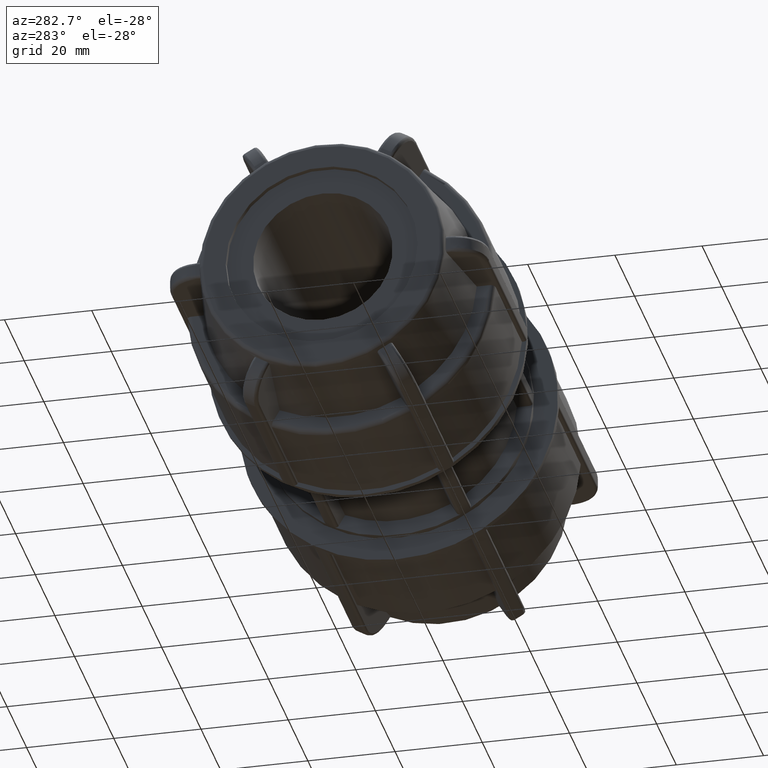
[diagram: clean part render]
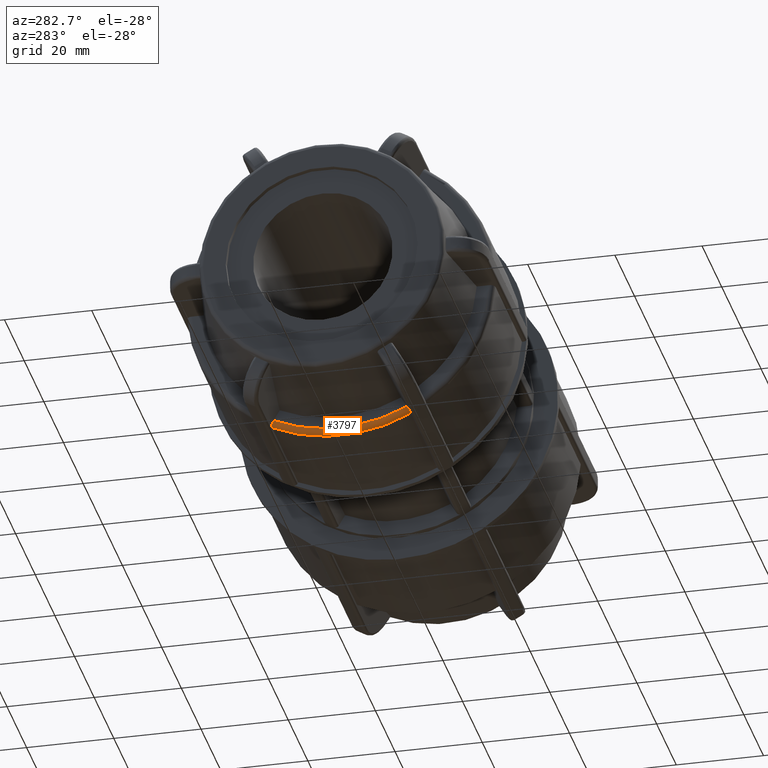
[diagram: same view with one face highlighted and labeled with its STEP entity id]
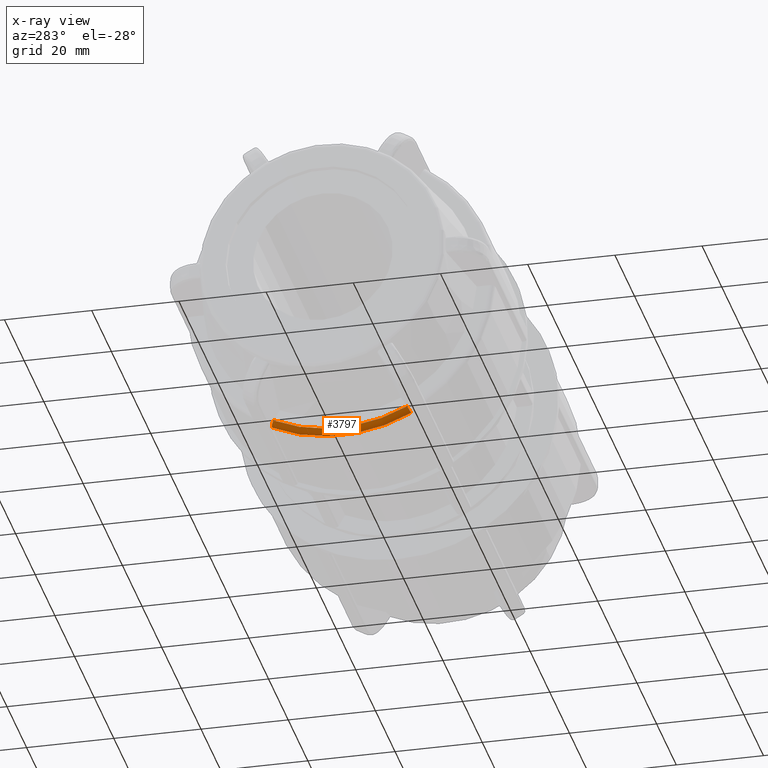
[diagram: x-ray of the same camera — body ghosted, the highlighted face saturated]
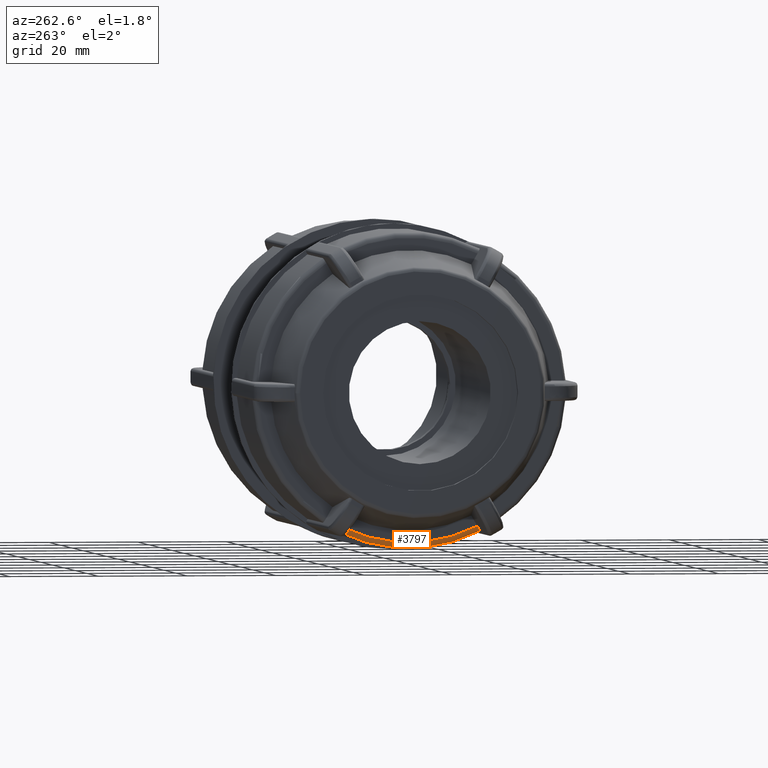
[diagram: same view with one face highlighted and labeled with its STEP entity id]
A machine part, auxiliary view. The second image highlights one B-rep face of the part: STEP entity #3797.
The next image is the same camera in x-ray: the body ghosted, the highlighted face saturated — about 0% of this face is hidden behind the body in this view.
A second angle (auxiliary view) of the same face is appended — the face is thin or edge-on in the first view.
In plain terms, the highlighted toroidal blend (fillet) surface has major radius 34.135 mm and minor (blend) radius 1.27 mm.
Its self-contained STEP definition (entity closure, byte-faithful):
#27=TOROIDAL_SURFACE('',#4144,34.135,1.27);
#70=B_SPLINE_CURVE_WITH_KNOTS('',3,(#5790,#5791,#5792,#5793,#5794,#5795,
#5796,#5797,#5798,#5799),.UNSPECIFIED.,.F.,.F.,(4,2,2,2,4),(-0.188239151094502,
-0.141113232694733,-0.0940304570825009,-0.0469960190171774,0.),
 .UNSPECIFIED.);
#104=B_SPLINE_CURVE_WITH_KNOTS('',3,(#6619,#6620,#6621,#6622,#6623,#6624,
#6625,#6626,#6627,#6628),.UNSPECIFIED.,.F.,.F.,(4,2,2,2,4),(0.,0.046996019017177,
0.0940304570825008,0.141113232694732,0.188239151094503),.UNSPECIFIED.);
#411=FACE_OUTER_BOUND('',#653,.T.);
#653=EDGE_LOOP('',(#2960,#2961,#2962,#2963));
#1365=CIRCLE('',#4132,34.135);
#1372=CIRCLE('',#4145,35.405);
#1570=VERTEX_POINT('',#5787);
#1571=VERTEX_POINT('',#5789);
#1675=VERTEX_POINT('',#6616);
#1676=VERTEX_POINT('',#6618);
#1986=EDGE_CURVE('',#1571,#1570,#70,.T.);
#2136=EDGE_CURVE('',#1676,#1675,#104,.T.);
#2161=EDGE_CURVE('',#1675,#1571,#1365,.T.);
#2170=EDGE_CURVE('',#1570,#1676,#1372,.T.);
#2960=ORIENTED_EDGE('',*,*,#1986,.T.);
#2961=ORIENTED_EDGE('',*,*,#2170,.T.);
#2962=ORIENTED_EDGE('',*,*,#2136,.T.);
#2963=ORIENTED_EDGE('',*,*,#2161,.T.);
#3797=ADVANCED_FACE('',(#411),#27,.T.);
#4132=AXIS2_PLACEMENT_3D('',#6696,#4917,#4918);
#4144=AXIS2_PLACEMENT_3D('',#6730,#4941,#4942);
#4145=AXIS2_PLACEMENT_3D('',#6731,#4943,#4944);
#4917=DIRECTION('center_axis',(1.,3.06161699786838E-16,0.));
#4918=DIRECTION('ref_axis',(3.06161699786838E-16,-1.,1.83697019872103E-16));
#4941=DIRECTION('center_axis',(1.,3.06161699786838E-16,0.));
#4942=DIRECTION('ref_axis',(0.,0.,-1.));
#4943=DIRECTION('center_axis',(-1.,-3.06161699786838E-16,0.));
#4944=DIRECTION('ref_axis',(3.05738581841414E-16,-1.,1.83697019872103E-16));
#5787=CARTESIAN_POINT('',(-43.18,15.9421820258527,-31.6126692522884));
#5789=CARTESIAN_POINT('',(-44.45,15.3061285625985,-30.5109923376019));
#5790=CARTESIAN_POINT('Ctrl Pts',(-44.45,15.3061285625985,-30.5109923376019));
#5791=CARTESIAN_POINT('Ctrl Pts',(-44.45,15.3846717599315,-30.6470331459715));
#5792=CARTESIAN_POINT('Ctrl Pts',(-44.4132703253075,15.4771171031854,-30.8071531774104));
#5793=CARTESIAN_POINT('Ctrl Pts',(-44.2931955099687,15.6222000441419,-31.0584442024585));
#5794=CARTESIAN_POINT('Ctrl Pts',(-44.1886539862115,15.7005257646304,-31.1941083298841));
#5795=CARTESIAN_POINT('Ctrl Pts',(-43.9669264528178,15.8114983712926,-31.3863185228714));
#5796=CARTESIAN_POINT('Ctrl Pts',(-43.8105538748911,15.8638037981107,-31.4769141796319));
#5797=CARTESIAN_POINT('Ctrl Pts',(-43.5210172064283,15.9238244761339,-31.5808730434729));
#5798=CARTESIAN_POINT('Ctrl Pts',(-43.3366533967239,15.9421820258527,-31.6126692522884));
#5799=CARTESIAN_POINT('Ctrl Pts',(-43.18,15.9421820258527,-31.6126692522884));
#6616=CARTESIAN_POINT('',(-44.45,-15.3061285625986,-30.5109923376019));
#6618=CARTESIAN_POINT('',(-43.18,-15.9421820258528,-31.6126692522883));
#6619=CARTESIAN_POINT('Ctrl Pts',(-43.18,-15.9421820258528,-31.6126692522883));
#6620=CARTESIAN_POINT('Ctrl Pts',(-43.3366533967239,-15.9421820258528,-31.6126692522883));
#6621=CARTESIAN_POINT('Ctrl Pts',(-43.5210172064283,-15.923824476134,-31.5808730434729));
#6622=CARTESIAN_POINT('Ctrl Pts',(-43.8105538748911,-15.8638037981108,-31.4769141796319));
#6623=CARTESIAN_POINT('Ctrl Pts',(-43.9669264528178,-15.8114983712927,-31.3863185228714));
#6624=CARTESIAN_POINT('Ctrl Pts',(-44.1886539862115,-15.7005257646304,-31.194108329884));
#6625=CARTESIAN_POINT('Ctrl Pts',(-44.2931955099686,-15.6222000441419,-31.0584442024585));
#6626=CARTESIAN_POINT('Ctrl Pts',(-44.4132703253075,-15.4771171031855,-30.8071531774104));
#6627=CARTESIAN_POINT('Ctrl Pts',(-44.45,-15.3846717599316,-30.6470331459715));
#6628=CARTESIAN_POINT('Ctrl Pts',(-44.45,-15.3061285625986,-30.5109923376019));
#6696=CARTESIAN_POINT('Origin',(-44.45,-1.3608887555525E-14,0.));
#6730=CARTESIAN_POINT('Origin',(-43.18,-1.32200621967957E-14,0.));
#6731=CARTESIAN_POINT('Origin',(-43.18,-1.32200621967957E-14,0.));